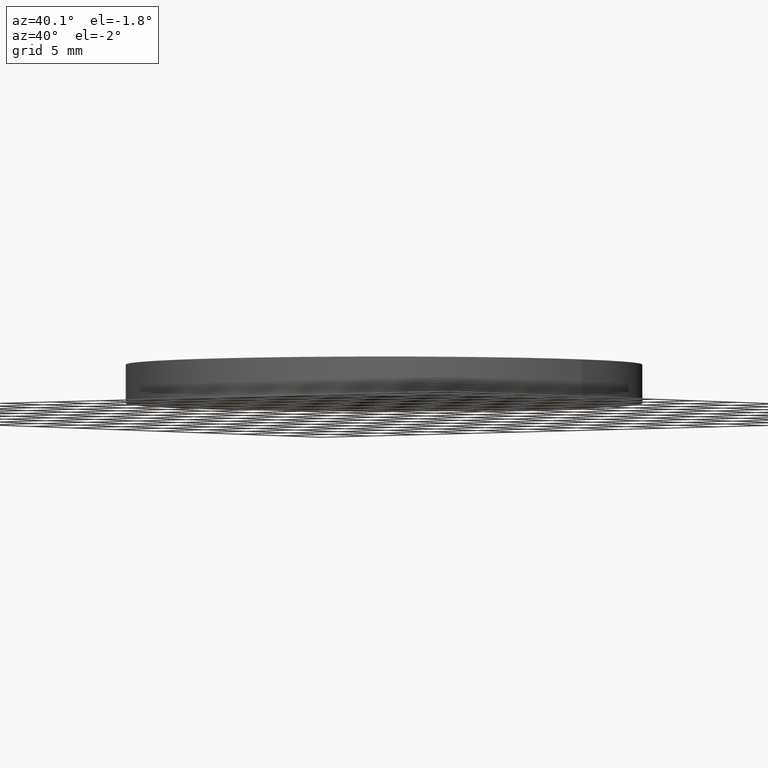
[diagram: clean part render]
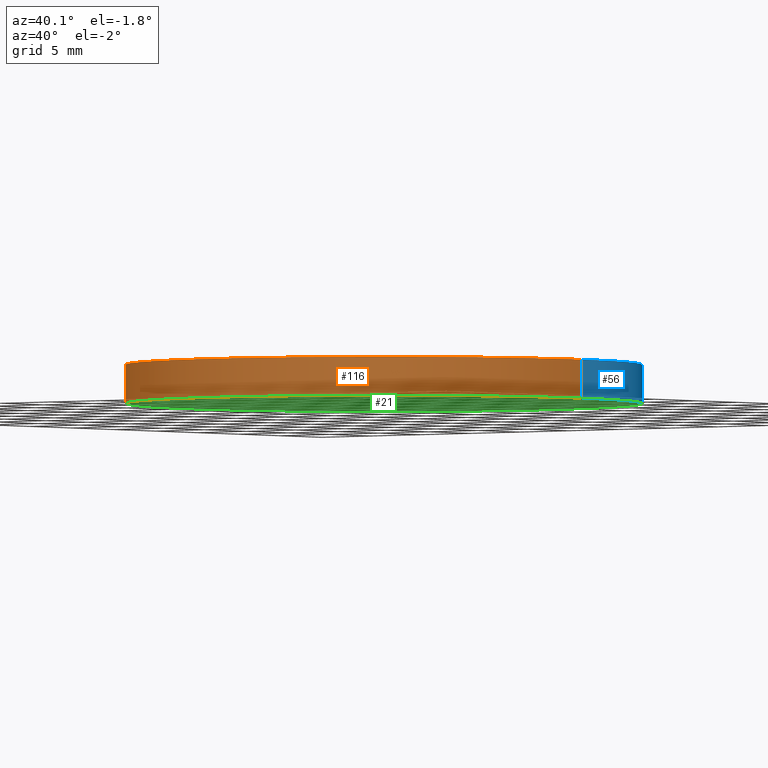
[diagram: same view with three faces highlighted in distinct colors, each labeled with its STEP entity id]
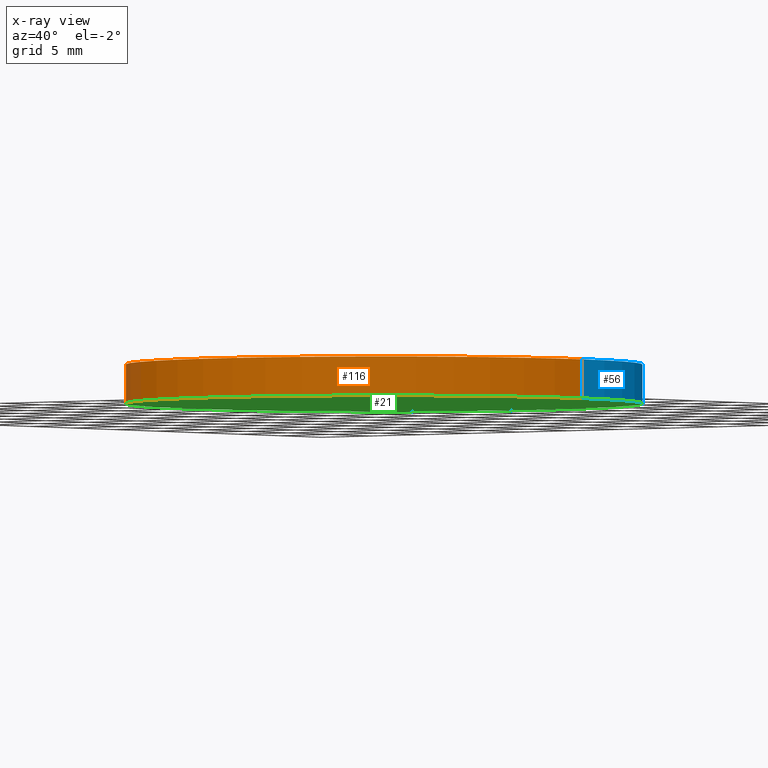
[diagram: x-ray of the same camera — body ghosted, the three highlighted faces saturated]
A machine part, auxiliary view with three faces highlighted in distinct colors.
The next image is the same camera in x-ray (body ghosted, the three faces saturated) — at least one of them is partly hidden behind the body in this view.
Their STEP definitions:

[orange] entity #116 — the highlighted cylindrical surface (partial cylindrical patch) has radius 20 mm, axis along (-0, -0, -1).
#3 = DIRECTION ( 'NONE',  ( -0.0000000000000000000, -0.0000000000000000000, -1.000000000000000000 ) ) ;
#6 = CARTESIAN_POINT ( 'NONE',  ( 20.00000000000000000, 2.449293598294706500E-015, 3.000000000000000000 ) ) ;
#15 = AXIS2_PLACEMENT_3D ( 'NONE', #87, #18, #78 ) ;
#16 = DIRECTION ( 'NONE',  ( -0.0000000000000000000, -0.0000000000000000000, -1.000000000000000000 ) ) ;
#18 = DIRECTION ( 'NONE',  ( 0.0000000000000000000, 0.0000000000000000000, 1.000000000000000000 ) ) ;
#22 = EDGE_CURVE ( 'NONE', #62, #67, #131, .T. ) ;
#26 = DIRECTION ( 'NONE',  ( 1.000000000000000000, 0.0000000000000000000, 0.0000000000000000000 ) ) ;
#27 = CARTESIAN_POINT ( 'NONE',  ( -20.00000000000000000, 0.0000000000000000000, 3.000000000000000000 ) ) ;
#28 = EDGE_CURVE ( 'NONE', #62, #86, #114, .T. ) ;
#35 = AXIS2_PLACEMENT_3D ( 'NONE', #36, #100, #26 ) ;
#36 = CARTESIAN_POINT ( 'NONE',  ( 0.0000000000000000000, 0.0000000000000000000, 0.0000000000000000000 ) ) ;
#43 = FACE_OUTER_BOUND ( 'NONE', #130, .T. ) ;
#47 = LINE ( 'NONE', #68, #55 ) ;
#52 = CARTESIAN_POINT ( 'NONE',  ( 20.00000000000000000, 2.449293598294706500E-015, 0.0000000000000000000 ) ) ;
#55 = VECTOR ( 'NONE', #126, 1000.000000000000000 ) ;
#58 = CIRCLE ( 'NONE', #35, 20.00000000000000000 ) ;
#62 = VERTEX_POINT ( 'NONE', #77 ) ;
#67 = VERTEX_POINT ( 'NONE', #6 ) ;
#68 = CARTESIAN_POINT ( 'NONE',  ( 20.00000000000000000, 2.449293598294706500E-015, 3.000000000000000000 ) ) ;
#70 = ORIENTED_EDGE ( 'NONE', *, *, #28, .T. ) ;
#77 = CARTESIAN_POINT ( 'NONE',  ( -20.00000000000000000, 0.0000000000000000000, 3.000000000000000000 ) ) ;
#78 = DIRECTION ( 'NONE',  ( 1.000000000000000000, 0.0000000000000000000, 0.0000000000000000000 ) ) ;
#86 = VERTEX_POINT ( 'NONE', #103 ) ;
#87 = CARTESIAN_POINT ( 'NONE',  ( 0.0000000000000000000, 0.0000000000000000000, 3.000000000000000000 ) ) ;
#88 = AXIS2_PLACEMENT_3D ( 'NONE', #111, #16, #137 ) ;
#90 = ORIENTED_EDGE ( 'NONE', *, *, #22, .F. ) ;
#92 = EDGE_CURVE ( 'NONE', #86, #123, #58, .T. ) ;
#95 = CYLINDRICAL_SURFACE ( 'NONE', #88, 20.00000000000000000 ) ;
#96 = EDGE_CURVE ( 'NONE', #67, #123, #47, .T. ) ;
#100 = DIRECTION ( 'NONE',  ( 0.0000000000000000000, 0.0000000000000000000, 1.000000000000000000 ) ) ;
#103 = CARTESIAN_POINT ( 'NONE',  ( -20.00000000000000000, 0.0000000000000000000, 0.0000000000000000000 ) ) ;
#111 = CARTESIAN_POINT ( 'NONE',  ( 0.0000000000000000000, 0.0000000000000000000, 3.000000000000000000 ) ) ;
#114 = LINE ( 'NONE', #27, #136 ) ;
#116 = ADVANCED_FACE ( 'NONE', ( #43 ), #95, .T. ) ;
#117 = ORIENTED_EDGE ( 'NONE', *, *, #96, .F. ) ;
#122 = ORIENTED_EDGE ( 'NONE', *, *, #92, .T. ) ;
#123 = VERTEX_POINT ( 'NONE', #52 ) ;
#126 = DIRECTION ( 'NONE',  ( -0.0000000000000000000, -0.0000000000000000000, -1.000000000000000000 ) ) ;
#130 = EDGE_LOOP ( 'NONE', ( #117, #90, #70, #122 ) ) ;
#131 = CIRCLE ( 'NONE', #15, 20.00000000000000000 ) ;
#136 = VECTOR ( 'NONE', #3, 1000.000000000000000 ) ;
#137 = DIRECTION ( 'NONE',  ( -1.000000000000000000, 0.0000000000000000000, 0.0000000000000000000 ) ) ;

[blue] entity #56 — the highlighted cylindrical surface (partial cylindrical patch) has radius 20 mm, axis along (-0, -0, -1).
#3 = DIRECTION ( 'NONE',  ( -0.0000000000000000000, -0.0000000000000000000, -1.000000000000000000 ) ) ;
#4 = ORIENTED_EDGE ( 'NONE', *, *, #28, .F. ) ;
#6 = CARTESIAN_POINT ( 'NONE',  ( 20.00000000000000000, 2.449293598294706500E-015, 3.000000000000000000 ) ) ;
#7 = DIRECTION ( 'NONE',  ( -1.000000000000000000, 0.0000000000000000000, 0.0000000000000000000 ) ) ;
#10 = AXIS2_PLACEMENT_3D ( 'NONE', #125, #45, #110 ) ;
#17 = FACE_OUTER_BOUND ( 'NONE', #132, .T. ) ;
#20 = AXIS2_PLACEMENT_3D ( 'NONE', #34, #98, #24 ) ;
#24 = DIRECTION ( 'NONE',  ( 1.000000000000000000, 0.0000000000000000000, 0.0000000000000000000 ) ) ;
#27 = CARTESIAN_POINT ( 'NONE',  ( -20.00000000000000000, 0.0000000000000000000, 3.000000000000000000 ) ) ;
#28 = EDGE_CURVE ( 'NONE', #62, #86, #114, .T. ) ;
#30 = CIRCLE ( 'NONE', #20, 20.00000000000000000 ) ;
#32 = ORIENTED_EDGE ( 'NONE', *, *, #96, .T. ) ;
#34 = CARTESIAN_POINT ( 'NONE',  ( 0.0000000000000000000, 0.0000000000000000000, 3.000000000000000000 ) ) ;
#38 = DIRECTION ( 'NONE',  ( -0.0000000000000000000, -0.0000000000000000000, -1.000000000000000000 ) ) ;
#40 = AXIS2_PLACEMENT_3D ( 'NONE', #85, #38, #7 ) ;
#45 = DIRECTION ( 'NONE',  ( 0.0000000000000000000, 0.0000000000000000000, 1.000000000000000000 ) ) ;
#47 = LINE ( 'NONE', #68, #55 ) ;
#52 = CARTESIAN_POINT ( 'NONE',  ( 20.00000000000000000, 2.449293598294706500E-015, 0.0000000000000000000 ) ) ;
#55 = VECTOR ( 'NONE', #126, 1000.000000000000000 ) ;
#56 = ADVANCED_FACE ( 'NONE', ( #17 ), #99, .T. ) ;
#62 = VERTEX_POINT ( 'NONE', #77 ) ;
#67 = VERTEX_POINT ( 'NONE', #6 ) ;
#68 = CARTESIAN_POINT ( 'NONE',  ( 20.00000000000000000, 2.449293598294706500E-015, 3.000000000000000000 ) ) ;
#77 = CARTESIAN_POINT ( 'NONE',  ( -20.00000000000000000, 0.0000000000000000000, 3.000000000000000000 ) ) ;
#80 = ORIENTED_EDGE ( 'NONE', *, *, #140, .T. ) ;
#85 = CARTESIAN_POINT ( 'NONE',  ( 0.0000000000000000000, 0.0000000000000000000, 3.000000000000000000 ) ) ;
#86 = VERTEX_POINT ( 'NONE', #103 ) ;
#96 = EDGE_CURVE ( 'NONE', #67, #123, #47, .T. ) ;
#98 = DIRECTION ( 'NONE',  ( 0.0000000000000000000, 0.0000000000000000000, 1.000000000000000000 ) ) ;
#99 = CYLINDRICAL_SURFACE ( 'NONE', #40, 20.00000000000000000 ) ;
#103 = CARTESIAN_POINT ( 'NONE',  ( -20.00000000000000000, 0.0000000000000000000, 0.0000000000000000000 ) ) ;
#110 = DIRECTION ( 'NONE',  ( 1.000000000000000000, 0.0000000000000000000, 0.0000000000000000000 ) ) ;
#114 = LINE ( 'NONE', #27, #136 ) ;
#115 = EDGE_CURVE ( 'NONE', #67, #62, #30, .T. ) ;
#120 = ORIENTED_EDGE ( 'NONE', *, *, #115, .F. ) ;
#123 = VERTEX_POINT ( 'NONE', #52 ) ;
#125 = CARTESIAN_POINT ( 'NONE',  ( 0.0000000000000000000, 0.0000000000000000000, 0.0000000000000000000 ) ) ;
#126 = DIRECTION ( 'NONE',  ( -0.0000000000000000000, -0.0000000000000000000, -1.000000000000000000 ) ) ;
#132 = EDGE_LOOP ( 'NONE', ( #120, #32, #80, #4 ) ) ;
#134 = CIRCLE ( 'NONE', #10, 20.00000000000000000 ) ;
#136 = VECTOR ( 'NONE', #3, 1000.000000000000000 ) ;
#140 = EDGE_CURVE ( 'NONE', #123, #86, #134, .T. ) ;

[green] entity #21 — the highlighted planar face has unit normal (0, 0, 1).
#10 = AXIS2_PLACEMENT_3D ( 'NONE', #125, #45, #110 ) ;
#11 = FACE_OUTER_BOUND ( 'NONE', #121, .T. ) ;
#12 = DIRECTION ( 'NONE',  ( 0.0000000000000000000, 0.0000000000000000000, 1.000000000000000000 ) ) ;
#21 = ADVANCED_FACE ( 'NONE', ( #11 ), #124, .F. ) ;
#26 = DIRECTION ( 'NONE',  ( 1.000000000000000000, 0.0000000000000000000, 0.0000000000000000000 ) ) ;
#35 = AXIS2_PLACEMENT_3D ( 'NONE', #36, #100, #26 ) ;
#36 = CARTESIAN_POINT ( 'NONE',  ( 0.0000000000000000000, 0.0000000000000000000, 0.0000000000000000000 ) ) ;
#45 = DIRECTION ( 'NONE',  ( 0.0000000000000000000, 0.0000000000000000000, 1.000000000000000000 ) ) ;
#49 = AXIS2_PLACEMENT_3D ( 'NONE', #133, #12, #93 ) ;
#52 = CARTESIAN_POINT ( 'NONE',  ( 20.00000000000000000, 2.449293598294706500E-015, 0.0000000000000000000 ) ) ;
#58 = CIRCLE ( 'NONE', #35, 20.00000000000000000 ) ;
#79 = ORIENTED_EDGE ( 'NONE', *, *, #140, .F. ) ;
#86 = VERTEX_POINT ( 'NONE', #103 ) ;
#92 = EDGE_CURVE ( 'NONE', #86, #123, #58, .T. ) ;
#93 = DIRECTION ( 'NONE',  ( 1.000000000000000000, 0.0000000000000000000, -0.0000000000000000000 ) ) ;
#100 = DIRECTION ( 'NONE',  ( 0.0000000000000000000, 0.0000000000000000000, 1.000000000000000000 ) ) ;
#103 = CARTESIAN_POINT ( 'NONE',  ( -20.00000000000000000, 0.0000000000000000000, 0.0000000000000000000 ) ) ;
#110 = DIRECTION ( 'NONE',  ( 1.000000000000000000, 0.0000000000000000000, 0.0000000000000000000 ) ) ;
#121 = EDGE_LOOP ( 'NONE', ( #127, #79 ) ) ;
#123 = VERTEX_POINT ( 'NONE', #52 ) ;
#124 = PLANE ( 'NONE',  #49 ) ;
#125 = CARTESIAN_POINT ( 'NONE',  ( 0.0000000000000000000, 0.0000000000000000000, 0.0000000000000000000 ) ) ;
#127 = ORIENTED_EDGE ( 'NONE', *, *, #92, .F. ) ;
#133 = CARTESIAN_POINT ( 'NONE',  ( 0.0000000000000000000, 0.0000000000000000000, 0.0000000000000000000 ) ) ;
#134 = CIRCLE ( 'NONE', #10, 20.00000000000000000 ) ;
#140 = EDGE_CURVE ( 'NONE', #123, #86, #134, .T. ) ;